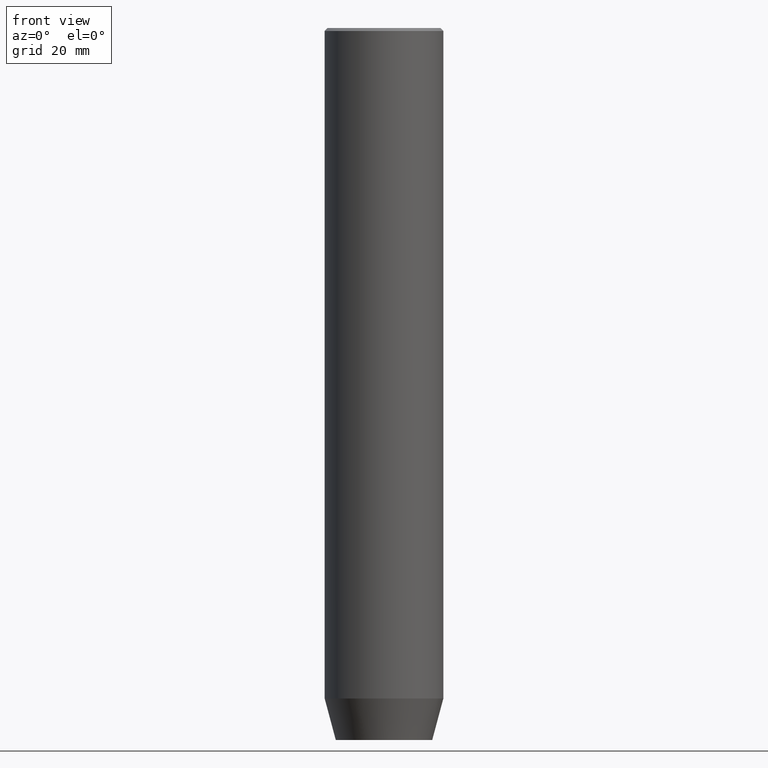
[diagram: clean part render]
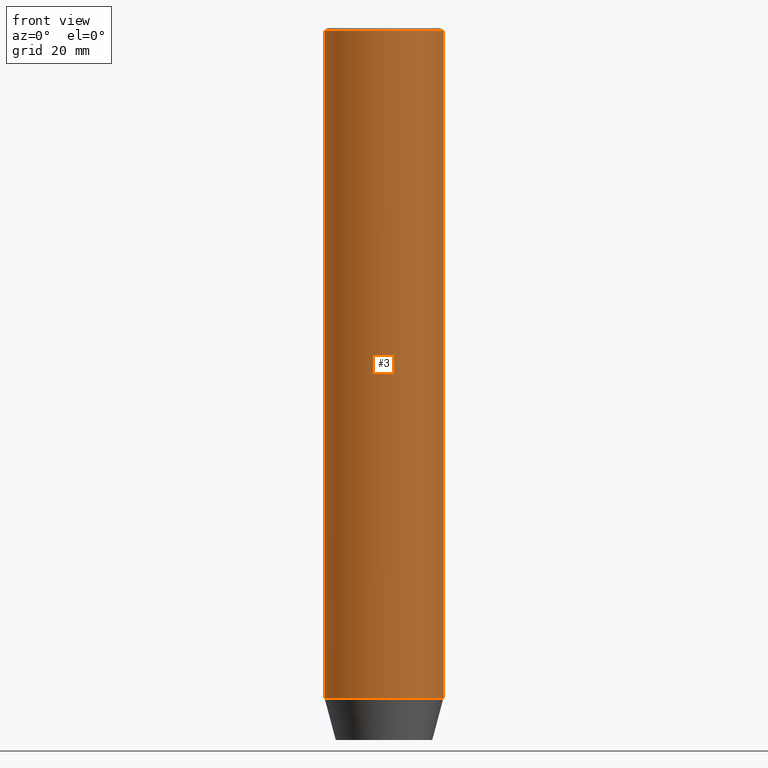
[diagram: same view with one face highlighted and labeled with its STEP entity id]
A machine part, front view. The second image highlights one B-rep face of the part: STEP entity #3.
In plain terms, the highlighted cylindrical surface (partial cylindrical patch) has radius 10 mm, axis along (-0, -0, 1).
Its self-contained STEP definition (entity closure, byte-faithful):
#3 = ADVANCED_FACE ( 'NONE', ( #39 ), #184, .T. ) ;
#21 = AXIS2_PLACEMENT_3D ( 'NONE', #352, #524, #520 ) ;
#22 = CARTESIAN_POINT ( 'NONE',  ( 10.00000000000000000, 0.000000000000000000, 0.000000000000000000 ) ) ;
#39 = FACE_OUTER_BOUND ( 'NONE', #295, .T. ) ;
#40 = VERTEX_POINT ( 'NONE', #136 ) ;
#49 = LINE ( 'NONE', #335, #381 ) ;
#55 = ORIENTED_EDGE ( 'NONE', *, *, #456, .F. ) ;
#71 = CIRCLE ( 'NONE', #21, 10.00000000000000000 ) ;
#74 = DIRECTION ( 'NONE',  ( 1.000000000000000000, 0.000000000000000000, 0.000000000000000000 ) ) ;
#81 = AXIS2_PLACEMENT_3D ( 'NONE', #353, #484, #74 ) ;
#83 = CARTESIAN_POINT ( 'NONE',  ( 10.00000000000000000, 0.000000000000000000, -112.9999999999999858 ) ) ;
#106 = DIRECTION ( 'NONE',  ( 1.000000000000000000, 0.000000000000000000, 0.000000000000000000 ) ) ;
#108 = EDGE_CURVE ( 'NONE', #289, #506, #269, .T. ) ;
#136 = CARTESIAN_POINT ( 'NONE',  ( -10.00000000000000000, 1.224646799147353256E-15, -112.9999999999999858 ) ) ;
#140 = CARTESIAN_POINT ( 'NONE',  ( 0.000000000000000000, 0.000000000000000000, 0.000000000000000000 ) ) ;
#149 = EDGE_CURVE ( 'NONE', #506, #246, #462, .T. ) ;
#178 = ORIENTED_EDGE ( 'NONE', *, *, #259, .T. ) ;
#184 = CYLINDRICAL_SURFACE ( 'NONE', #556, 10.00000000000000000 ) ;
#214 = VECTOR ( 'NONE', #225, 1000.000000000000000 ) ;
#225 = DIRECTION ( 'NONE',  ( -0.000000000000000000, -0.000000000000000000, 1.000000000000000000 ) ) ;
#246 = VERTEX_POINT ( 'NONE', #538 ) ;
#259 = EDGE_CURVE ( 'NONE', #40, #289, #71, .T. ) ;
#261 = ORIENTED_EDGE ( 'NONE', *, *, #108, .T. ) ;
#269 = LINE ( 'NONE', #22, #214 ) ;
#285 = DIRECTION ( 'NONE',  ( -0.000000000000000000, -0.000000000000000000, 1.000000000000000000 ) ) ;
#289 = VERTEX_POINT ( 'NONE', #83 ) ;
#295 = EDGE_LOOP ( 'NONE', ( #55, #178, #261, #424 ) ) ;
#330 = DIRECTION ( 'NONE',  ( -0.000000000000000000, -0.000000000000000000, 1.000000000000000000 ) ) ;
#335 = CARTESIAN_POINT ( 'NONE',  ( -10.00000000000000000, 1.224646799147353256E-15, 0.000000000000000000 ) ) ;
#352 = CARTESIAN_POINT ( 'NONE',  ( 0.000000000000000000, 0.000000000000000000, -112.9999999999999858 ) ) ;
#353 = CARTESIAN_POINT ( 'NONE',  ( 0.000000000000000000, 0.000000000000000000, -0.5000000000000125455 ) ) ;
#381 = VECTOR ( 'NONE', #285, 1000.000000000000000 ) ;
#390 = CARTESIAN_POINT ( 'NONE',  ( 10.00000000000000000, 0.000000000000000000, -0.5000000000000125455 ) ) ;
#424 = ORIENTED_EDGE ( 'NONE', *, *, #149, .T. ) ;
#456 = EDGE_CURVE ( 'NONE', #40, #246, #49, .T. ) ;
#462 = CIRCLE ( 'NONE', #81, 10.00000000000000000 ) ;
#484 = DIRECTION ( 'NONE',  ( 0.000000000000000000, 0.000000000000000000, -1.000000000000000000 ) ) ;
#506 = VERTEX_POINT ( 'NONE', #390 ) ;
#520 = DIRECTION ( 'NONE',  ( 1.000000000000000000, 0.000000000000000000, 0.000000000000000000 ) ) ;
#524 = DIRECTION ( 'NONE',  ( -0.000000000000000000, -0.000000000000000000, 1.000000000000000000 ) ) ;
#538 = CARTESIAN_POINT ( 'NONE',  ( -10.00000000000000000, 1.224646799147353256E-15, -0.5000000000000125455 ) ) ;
#556 = AXIS2_PLACEMENT_3D ( 'NONE', #140, #330, #106 ) ;